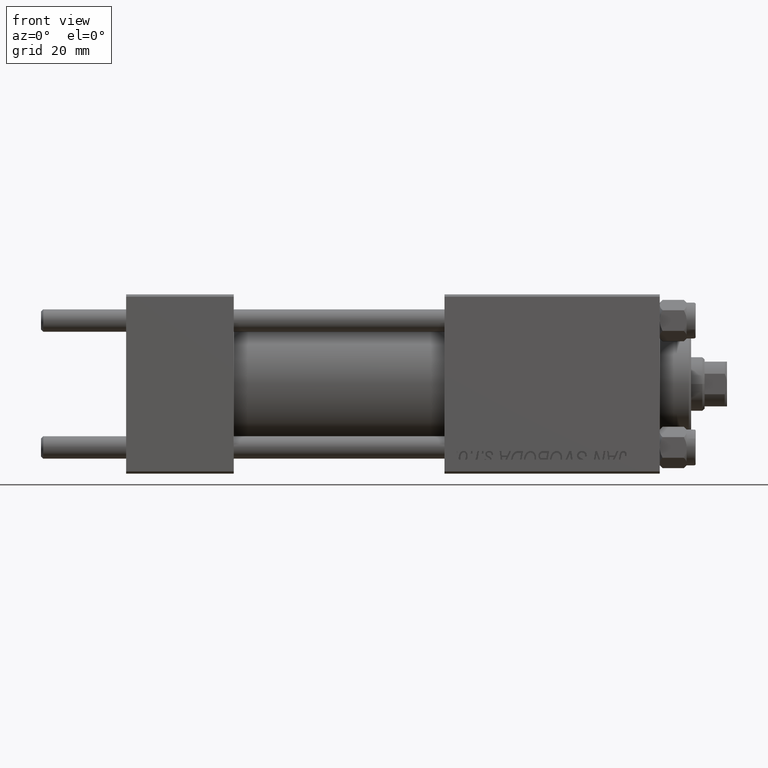
[diagram: clean part render]
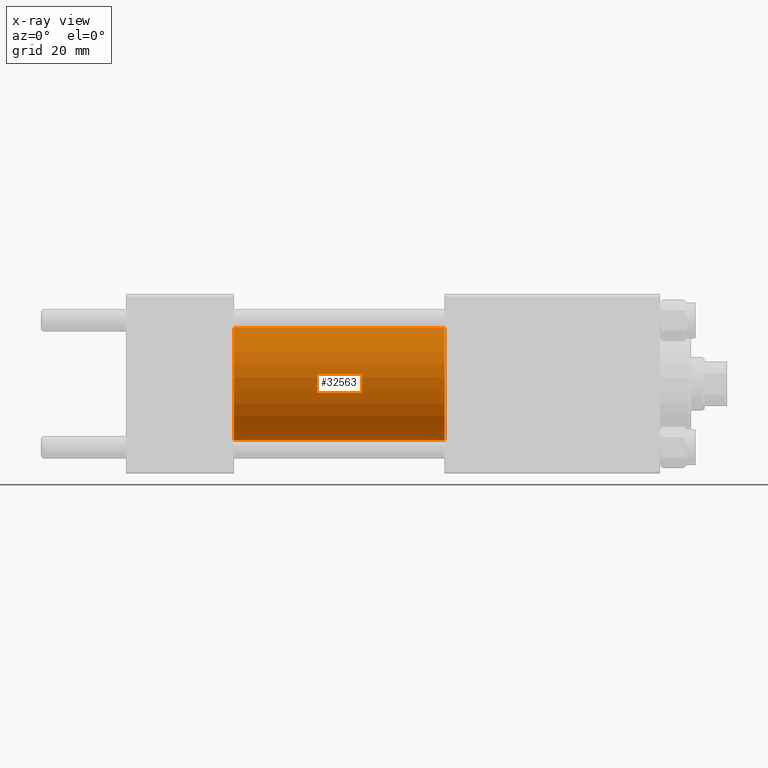
[diagram: x-ray — body ghosted, one internal face saturated and labeled with its STEP entity id]
A machine part, front view, then the same camera in x-ray: the body is ghosted and one INTERNAL B-rep face — a face not visible from any outside direction — is saturated and labeled: STEP entity #32563.
In plain terms, the highlighted cylindrical surface (partial cylindrical patch) has radius 12.5 mm, axis along (-1, -0, -0).
Its self-contained STEP definition (entity closure, byte-faithful):
#1793 = CARTESIAN_POINT ( 'NONE',  ( 71.00000000000001421, 0.000000000000000000, 12.49999999999999645 ) ) ;
#3762 = CARTESIAN_POINT ( 'NONE',  ( 71.00000000000001421, 0.000000000000000000, 12.49999999999999645 ) ) ;
#4053 = EDGE_CURVE ( 'NONE', #31003, #35966, #27943, .T. ) ;
#5021 = CARTESIAN_POINT ( 'NONE',  ( 71.00000000000001421, 1.530808498934191127E-15, -12.49999999999999645 ) ) ;
#5895 = VECTOR ( 'NONE', #35744, 1000.000000000000000 ) ;
#8474 = AXIS2_PLACEMENT_3D ( 'NONE', #43994, #21334, #40221 ) ;
#9940 = FACE_OUTER_BOUND ( 'NONE', #18586, .T. ) ;
#11050 = EDGE_CURVE ( 'NONE', #43687, #35966, #22959, .T. ) ;
#11607 = CARTESIAN_POINT ( 'NONE',  ( 24.00000000000000000, 0.000000000000000000, 12.49999999999999645 ) ) ;
#12663 = DIRECTION ( 'NONE',  ( 0.000000000000000000, 0.000000000000000000, -1.000000000000000000 ) ) ;
#13791 = ORIENTED_EDGE ( 'NONE', *, *, #28740, .T. ) ;
#14453 = CYLINDRICAL_SURFACE ( 'NONE', #28707, 12.49999999999999645 ) ;
#17745 = DIRECTION ( 'NONE',  ( 0.000000000000000000, 0.000000000000000000, 1.000000000000000000 ) ) ;
#18586 = EDGE_LOOP ( 'NONE', ( #13791, #46353, #47627, #22603 ) ) ;
#19231 = VERTEX_POINT ( 'NONE', #3762 ) ;
#20968 = DIRECTION ( 'NONE',  ( 1.000000000000000000, 0.000000000000000000, 0.000000000000000000 ) ) ;
#21334 = DIRECTION ( 'NONE',  ( 1.000000000000000000, 0.000000000000000000, 0.000000000000000000 ) ) ;
#21765 = CARTESIAN_POINT ( 'NONE',  ( 71.00000000000001421, 0.000000000000000000, 0.000000000000000000 ) ) ;
#22603 = ORIENTED_EDGE ( 'NONE', *, *, #25812, .F. ) ;
#22959 = CIRCLE ( 'NONE', #48699, 12.49999999999999645 ) ;
#25812 = EDGE_CURVE ( 'NONE', #19231, #43687, #48118, .T. ) ;
#27943 = LINE ( 'NONE', #5021, #5895 ) ;
#28707 = AXIS2_PLACEMENT_3D ( 'NONE', #21765, #29801, #17745 ) ;
#28740 = EDGE_CURVE ( 'NONE', #19231, #31003, #30960, .T. ) ;
#29801 = DIRECTION ( 'NONE',  ( -1.000000000000000000, -0.000000000000000000, -0.000000000000000000 ) ) ;
#30960 = CIRCLE ( 'NONE', #8474, 12.49999999999999645 ) ;
#31003 = VERTEX_POINT ( 'NONE', #46727 ) ;
#32563 = ADVANCED_FACE ( 'NONE', ( #9940 ), #14453, .F. ) ;
#34995 = VECTOR ( 'NONE', #44816, 1000.000000000000000 ) ;
#35744 = DIRECTION ( 'NONE',  ( -1.000000000000000000, -0.000000000000000000, -0.000000000000000000 ) ) ;
#35814 = CARTESIAN_POINT ( 'NONE',  ( 24.00000000000000000, 0.000000000000000000, 0.000000000000000000 ) ) ;
#35966 = VERTEX_POINT ( 'NONE', #44106 ) ;
#40221 = DIRECTION ( 'NONE',  ( 0.000000000000000000, 0.000000000000000000, -1.000000000000000000 ) ) ;
#43687 = VERTEX_POINT ( 'NONE', #11607 ) ;
#43994 = CARTESIAN_POINT ( 'NONE',  ( 71.00000000000001421, 0.000000000000000000, 0.000000000000000000 ) ) ;
#44106 = CARTESIAN_POINT ( 'NONE',  ( 24.00000000000000000, 1.530808498934191127E-15, -12.49999999999999645 ) ) ;
#44816 = DIRECTION ( 'NONE',  ( -1.000000000000000000, -0.000000000000000000, -0.000000000000000000 ) ) ;
#46353 = ORIENTED_EDGE ( 'NONE', *, *, #4053, .T. ) ;
#46727 = CARTESIAN_POINT ( 'NONE',  ( 71.00000000000001421, 1.530808498934191127E-15, -12.49999999999999645 ) ) ;
#47627 = ORIENTED_EDGE ( 'NONE', *, *, #11050, .F. ) ;
#48118 = LINE ( 'NONE', #1793, #34995 ) ;
#48699 = AXIS2_PLACEMENT_3D ( 'NONE', #35814, #20968, #12663 ) ;